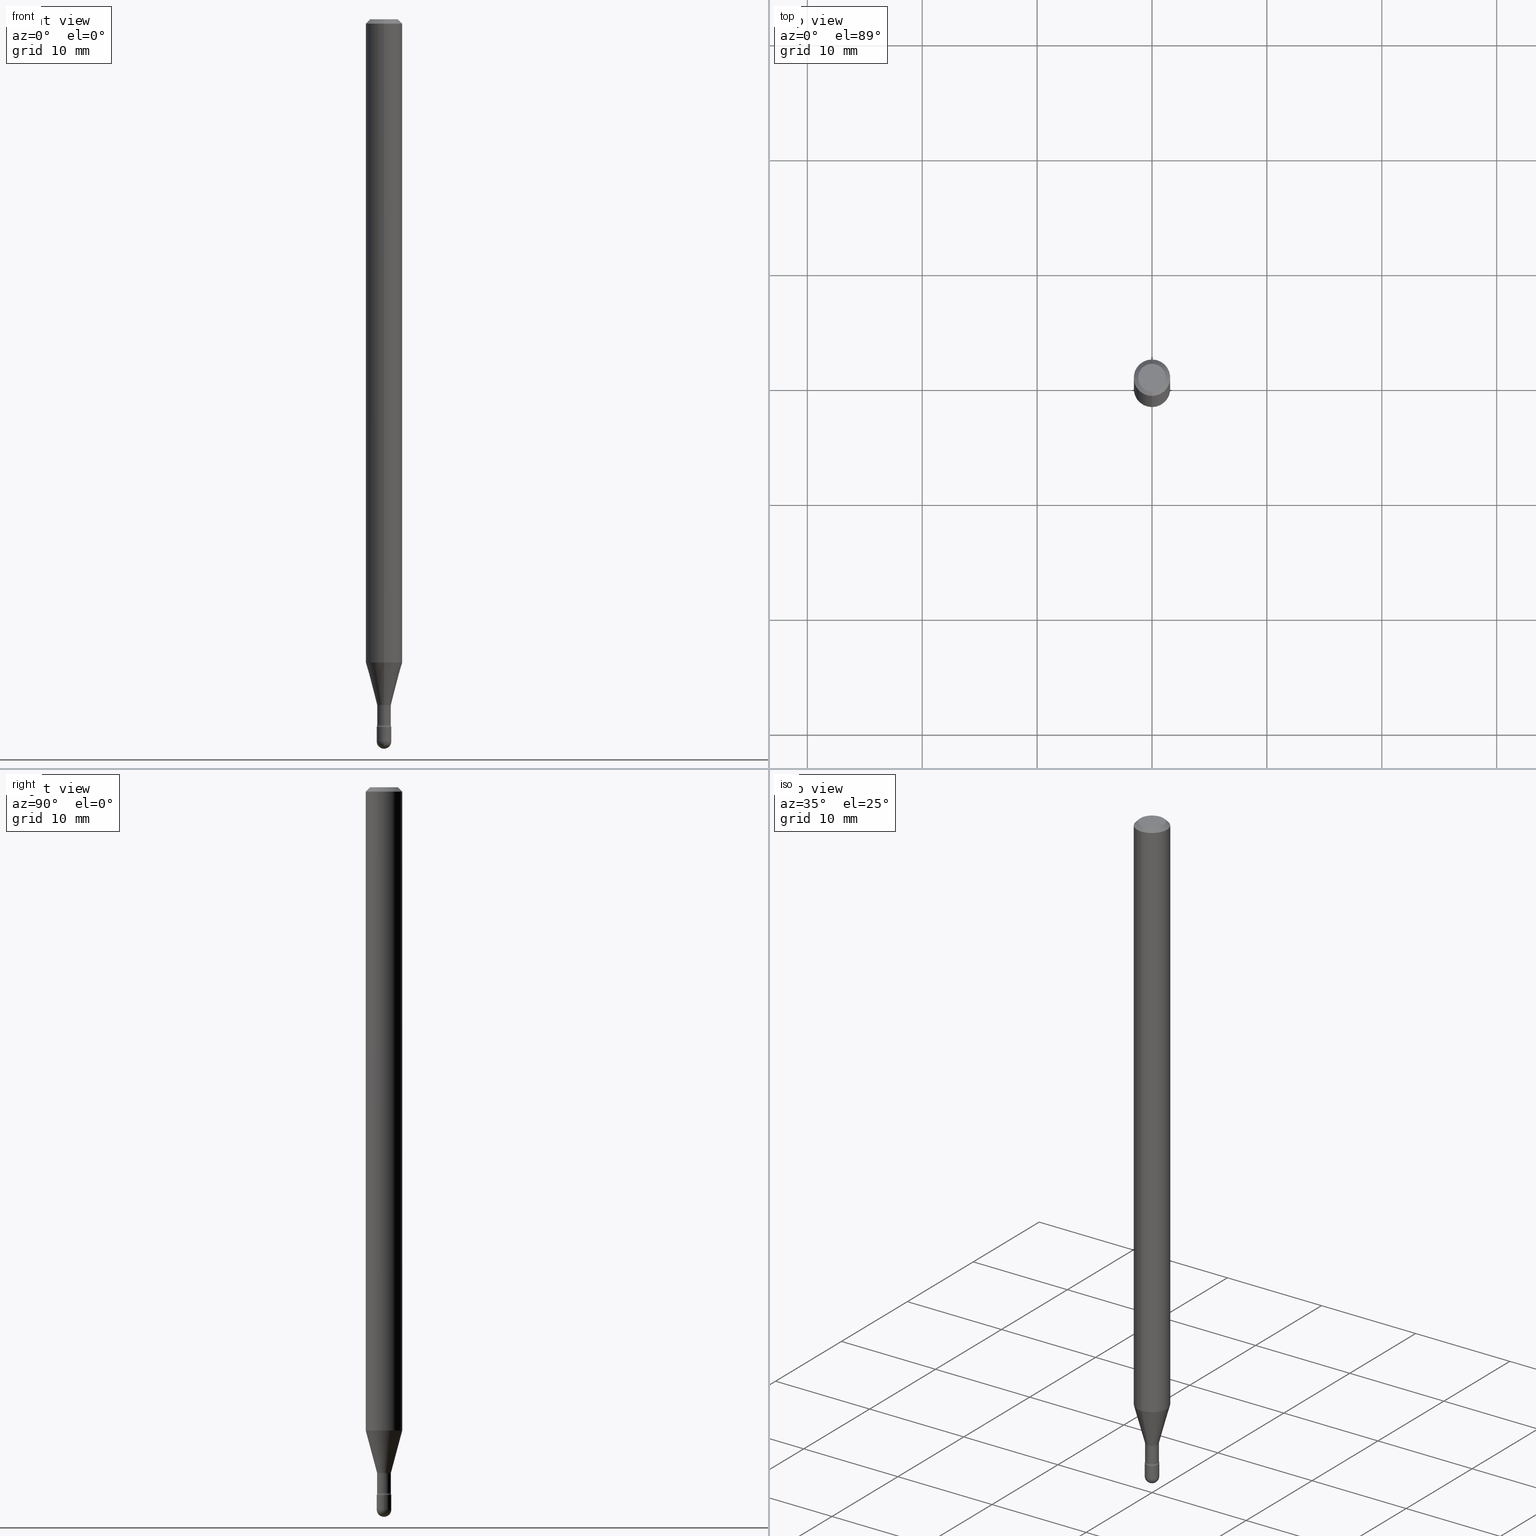
[diagram: canonical four-view strip — front | top / right | iso, engineering-drawing reading convention]
A machine part, canonical four-view strip (front | top / right | iso — engineering-drawing reading convention). The complete STEP part file that produces these views, byte-faithful:
ISO-10303-21;
HEADER;
FILE_DESCRIPTION (( 'STEP AP203' ),
    '1' );
FILE_NAME ('09480.STEP',
    '2024-04-09T23:40:14',
    ( '' ),
    ( '' ),
    'SwSTEP 2.0',
    'SolidWorks 2023',
    '' );
FILE_SCHEMA (( 'CONFIG_CONTROL_DESIGN' ));
ENDSEC;

DATA;
#1 = DIRECTION ( 'NONE',  ( -2.445458152833989696E-29, 3.491496595048338889E-15, 1.000000000000000000 ) ) ;
#2 = VERTEX_POINT ( 'NONE', #441 ) ;
#3 = DIRECTION ( 'NONE',  ( -2.445458152833989696E-29, 3.491496595048338889E-15, 1.000000000000000000 ) ) ;
#4 = EDGE_CURVE ( 'NONE', #323, #189, #249, .T. ) ;
#5 = CARTESIAN_POINT ( 'NONE',  ( -1.676687031750163775E-16, -0.02401111260567218020, -2.348092501787273356 ) ) ;
#6 = ORIENTED_EDGE ( 'NONE', *, *, #499, .T. ) ;
#7 = AXIS2_PLACEMENT_3D ( 'NONE', #209, #30, #128 ) ;
#8 = DIRECTION ( 'NONE',  ( -2.445468806185136597E-29, 3.491481338843145583E-15, 1.000000000000000000 ) ) ;
#9 = DIRECTION ( 'NONE',  ( -2.445458152833989696E-29, 3.491496595048338889E-15, 1.000000000000000000 ) ) ;
#10 = EDGE_LOOP ( 'NONE', ( #470, #363, #6, #267 ) ) ;
#11 = DIRECTION ( 'NONE',  ( -1.000000000000000000, 6.982962677686265922E-15, -4.883557194083112340E-29 ) ) ;
#12 = CARTESIAN_POINT ( 'NONE',  ( 5.930261854998957144E-29, -8.466842246694628363E-15, -2.425000000000000266 ) ) ;
#13 = ADVANCED_FACE ( 'NONE', ( #55 ), #312, .T. ) ;
#14 = CC_DESIGN_DATE_AND_TIME_ASSIGNMENT ( #410, #163, ( #439 ) ) ;
#15 = LINE ( 'NONE', #290, #82 ) ;
#16 = EDGE_LOOP ( 'NONE', ( #241, #280, #304, #162, #51 ) ) ;
#17 = AXIS2_PLACEMENT_3D ( 'NONE', #562, #343, #302 ) ;
#18 = LOCAL_TIME ( 19, 40, 14.00000000000000000, #120 ) ;
#19 = DIRECTION ( 'NONE',  ( -6.982962677686266711E-15, -1.000000000000000000, 3.491496595048338889E-15 ) ) ;
#20 = VERTEX_POINT ( 'NONE', #373 ) ;
#21 = DIRECTION ( 'NONE',  ( -2.445468806185136877E-29, 3.491481338843145188E-15, 1.000000000000000000 ) ) ;
#22 = FACE_OUTER_BOUND ( 'NONE', #539, .T. ) ;
#23 = CARTESIAN_POINT ( 'NONE',  ( -1.169113584055446105E-44, 1.669184350826100908E-30, 4.780733988912460139E-16 ) ) ;
#24 = EDGE_CURVE ( 'NONE', #346, #20, #158, .T. ) ;
#25 = ADVANCED_FACE ( 'NONE', ( #175 ), #461, .F. ) ;
#26 = CALENDAR_DATE ( 2024, 9, 4 ) ;
#27 = CARTESIAN_POINT ( 'NONE',  ( 4.364351673553919652E-16, 0.06249999999999995143, -0.01500000000000030129 ) ) ;
#28 = VERTEX_POINT ( 'NONE', #415 ) ;
#29 = DATE_AND_TIME ( #26, #80 ) ;
#30 = DIRECTION ( 'NONE',  ( -2.445468806185136597E-29, 3.491481338843145583E-15, 1.000000000000000000 ) ) ;
#31 = VECTOR ( 'NONE', #354, 39.37007874015748143 ) ;
#32 = DIRECTION ( 'NONE',  ( -2.445458152833989696E-29, 3.491496595048338889E-15, 1.000000000000000000 ) ) ;
#33 = CIRCLE ( 'NONE', #317, 0.02350000000000008332 ) ;
#34 = DIRECTION ( 'NONE',  ( -2.445468806185136597E-29, 3.491481338843145583E-15, 1.000000000000000000 ) ) ;
#35 = CARTESIAN_POINT ( 'NONE',  ( 0.000000000000000000, 0.000000000000000000, 0.000000000000000000 ) ) ;
#36 = CARTESIAN_POINT ( 'NONE',  ( -0.02500000000000000486, 1.776356839400250810E-16, -1.229733772563726656E-30 ) ) ;
#37 = EDGE_CURVE ( 'NONE', #143, #199, #502, .T. ) ;
#38 = DIRECTION ( 'NONE',  ( 1.000000000000000000, -6.982962677686253300E-15, 0.000000000000000000 ) ) ;
#39 = CARTESIAN_POINT ( 'NONE',  ( -1.169113584055446105E-44, 1.669184350826100908E-30, 4.780733988912460139E-16 ) ) ;
#40 = CIRCLE ( 'NONE', #90, 0.02500000000000000139 ) ;
#41 = DIRECTION ( 'NONE',  ( 7.105427357601001859E-15, 1.000000000000000000, 0.000000000000000000 ) ) ;
#42 = EDGE_CURVE ( 'NONE', #532, #521, #501, .T. ) ;
#43 = VERTEX_POINT ( 'NONE', #545 ) ;
#44 = CIRCLE ( 'NONE', #274, 0.06250000000000000000 ) ;
#45 = DIRECTION ( 'NONE',  ( -6.982962677686265133E-15, -1.000000000000000000, 0.000000000000000000 ) ) ;
#46 = AXIS2_PLACEMENT_3D ( 'NONE', #552, #413, #551 ) ;
#47 = AXIS2_PLACEMENT_3D ( 'NONE', #151, #520, #517 ) ;
#48 = DIRECTION ( 'NONE',  ( -6.982962677686265922E-15, -1.000000000000000000, 0.000000000000000000 ) ) ;
#49 = ORIENTED_EDGE ( 'NONE', *, *, #555, .T. ) ;
#50 = DIRECTION ( 'NONE',  ( -1.807323732225330928E-15, -0.2588190451025182970, 0.9659258262890689783 ) ) ;
#51 = ORIENTED_EDGE ( 'NONE', *, *, #83, .T. ) ;
#52 = PRODUCT ( '09480', '09480', '', ( #222 ) ) ;
#53 = LINE ( 'NONE', #5, #159 ) ;
#54 = ORIENTED_EDGE ( 'NONE', *, *, #279, .T. ) ;
#55 = FACE_OUTER_BOUND ( 'NONE', #183, .T. ) ;
#56 = LOCAL_TIME ( 19, 40, 14.00000000000000000, #273 ) ;
#57 = AXIS2_PLACEMENT_3D ( 'NONE', #350, #9, #269 ) ;
#58 = CARTESIAN_POINT ( 'NONE',  ( 3.668187229251004706E-31, -5.237244892572537719E-17, -0.01500000000000008271 ) ) ;
#59 = ORIENTED_EDGE ( 'NONE', *, *, #287, .F. ) ;
#60 = ADVANCED_FACE ( 'NONE', ( #70 ), #289, .T. ) ;
#61 = ADVANCED_FACE ( 'NONE', ( #212 ), #247, .T. ) ;
#62 = PERSON_AND_ORGANIZATION ( #300, #512 ) ;
#63 = EDGE_LOOP ( 'NONE', ( #351, #203, #238, #307 ) ) ;
#64 = CARTESIAN_POINT ( 'NONE',  ( 5.914272527905344176E-29, -8.444013725215716224E-15, -2.418461651584689509 ) ) ;
#65 = LINE ( 'NONE', #99, #402 ) ;
#66 = VERTEX_POINT ( 'NONE', #215 ) ;
#67 = PERSON_AND_ORGANIZATION ( #300, #512 ) ;
#68 = DIRECTION ( 'NONE',  ( -2.445458152833989696E-29, 3.491496595048338889E-15, 1.000000000000000000 ) ) ;
#69 = ORIENTED_EDGE ( 'NONE', *, *, #367, .F. ) ;
#70 = FACE_OUTER_BOUND ( 'NONE', #525, .T. ) ;
#71 = DIRECTION ( 'NONE',  ( -6.982962677686265133E-15, -1.000000000000000000, 0.000000000000000000 ) ) ;
#72 = ORIENTED_EDGE ( 'NONE', *, *, #435, .F. ) ;
#73 = CARTESIAN_POINT ( 'NONE',  ( -1.169113584055446105E-44, 1.669184350826100908E-30, 4.780733988912460139E-16 ) ) ;
#74 = CARTESIAN_POINT ( 'NONE',  ( 5.914246763184134866E-29, -8.444050621762925352E-15, -2.418461651584689509 ) ) ;
#75 = APPROVAL_ROLE ( '' ) ;
#76 = CARTESIAN_POINT ( 'NONE',  ( 6.052535295308213750E-29, -8.641416313636786609E-15, -2.475000000000000089 ) ) ;
#77 = EDGE_CURVE ( 'NONE', #323, #357, #138, .T. ) ;
#78 = DIRECTION ( 'NONE',  ( -2.445458152833989696E-29, 3.491496595048338889E-15, 1.000000000000000000 ) ) ;
#79 = AXIS2_PLACEMENT_3D ( 'NONE', #467, #89, #41 ) ;
#80 = LOCAL_TIME ( 19, 40, 14.00000000000000000, #114 ) ;
#81 = AXIS2_PLACEMENT_3D ( 'NONE', #463, #78, #248 ) ;
#82 = VECTOR ( 'NONE', #320, 39.37007874015748143 ) ;
#83 = EDGE_CURVE ( 'NONE', #20, #28, #537, .T. ) ;
#84 = DIRECTION ( 'NONE',  ( 1.000000000000000000, -6.982962677686253300E-15, 0.000000000000000000 ) ) ;
#85 = DIRECTION ( 'NONE',  ( -2.445458152833989696E-29, 3.491496595048338889E-15, 1.000000000000000000 ) ) ;
#86 = DIRECTION ( 'NONE',  ( 1.000000000000000000, -6.982962677686254878E-15, 0.000000000000000000 ) ) ;
#87 = MANIFOLD_SOLID_BREP ( 'Body-Move/Copy2[1]', #124 ) ;
#88 = EDGE_CURVE ( 'NONE', #66, #522, #458, .T. ) ;
#89 = DIRECTION ( 'NONE',  ( 1.000000000000000000, -7.105427357601001070E-15, 4.926315695376710518E-29 ) ) ;
#90 = AXIS2_PLACEMENT_3D ( 'NONE', #375, #508, #86 ) ;
#91 = MANIFOLD_SOLID_BREP ( 'Body-Move/Copy2[2]', #232 ) ;
#92 = DIRECTION ( 'NONE',  ( -6.982962677686265133E-15, -1.000000000000000000, 0.000000000000000000 ) ) ;
#93 = EDGE_LOOP ( 'NONE', ( #265, #95, #378, #322 ) ) ;
#94 = DIRECTION ( 'NONE',  ( -2.445458152833989696E-29, 3.491496595048338889E-15, 1.000000000000000000 ) ) ;
#95 = ORIENTED_EDGE ( 'NONE', *, *, #147, .T. ) ;
#96 = CIRCLE ( 'NONE', #57, 0.06250000000000000000 ) ;
#97 = ADVANCED_FACE ( 'NONE', ( #168 ), #330, .T. ) ;
#98 = CYLINDRICAL_SURFACE ( 'NONE', #135, 0.06250000000000000000 ) ;
#99 = CARTESIAN_POINT ( 'NONE',  ( 4.440892098500625669E-16, 0.06250000000000000000, 2.598548617007248827E-16 ) ) ;
#100 = ORIENTED_EDGE ( 'NONE', *, *, #121, .F. ) ;
#101 = CARTESIAN_POINT ( 'NONE',  ( 0.02500000000000000486, -1.745740669421567171E-16, 1.219044193948984299E-30 ) ) ;
#102 = DIRECTION ( 'NONE',  ( -6.982962677686265922E-15, -1.000000000000000000, 4.370956789862821150E-15 ) ) ;
#103 = CARTESIAN_POINT ( 'NONE',  ( 0.02500000000000000139, -8.641416313636785031E-15, -2.425000000000000266 ) ) ;
#104 = EDGE_LOOP ( 'NONE', ( #72, #423 ) ) ;
#105 = DIRECTION ( 'NONE',  ( -2.445458152833989696E-29, 3.491496595048338889E-15, 1.000000000000000000 ) ) ;
#106 = ADVANCED_FACE ( 'NONE', ( #251 ), #513, .F. ) ;
#107 = ORIENTED_EDGE ( 'NONE', *, *, #37, .F. ) ;
#108 = AXIS2_PLACEMENT_3D ( 'NONE', #230, #527, #303 ) ;
#109 = CALENDAR_DATE ( 2024, 9, 4 ) ;
#110 = DIRECTION ( 'NONE',  ( 1.000000000000000000, -7.105427357601001070E-15, 4.926315695376710518E-29 ) ) ;
#111 = AXIS2_PLACEMENT_3D ( 'NONE', #483, #105, #270 ) ;
#112 = FACE_OUTER_BOUND ( 'NONE', #301, .T. ) ;
#113 = EDGE_LOOP ( 'NONE', ( #154, #352, #193, #311 ) ) ;
#114 = COORDINATED_UNIVERSAL_TIME_OFFSET ( 5, 0, .BEHIND. ) ;
#115 = CARTESIAN_POINT ( 'NONE',  ( -3.773273898774340269E-16, -0.04749999999999999362, 8.309978086299737473E-17 ) ) ;
#116 = ORIENTED_EDGE ( 'NONE', *, *, #161, .T. ) ;
#117 = EDGE_CURVE ( 'NONE', #28, #143, #469, .T. ) ;
#118 = DATE_TIME_ROLE ( 'classification_date' ) ;
#119 = EDGE_LOOP ( 'NONE', ( #392, #480, #475, #456 ) ) ;
#120 = COORDINATED_UNIVERSAL_TIME_OFFSET ( 5, 0, .BEHIND. ) ;
#121 = EDGE_CURVE ( 'NONE', #226, #566, #420, .T. ) ;
#122 = ORIENTED_EDGE ( 'NONE', *, *, #129, .T. ) ;
#123 = DIRECTION ( 'NONE',  ( -2.445458152833989696E-29, 3.491496595048338889E-15, 1.000000000000000000 ) ) ;
#124 = CLOSED_SHELL ( 'NONE', ( #61, #60, #13, #150, #385 ) ) ;
#125 = SECURITY_CLASSIFICATION_LEVEL ( 'unclassified' ) ;
#126 = DIRECTION ( 'NONE',  ( -2.445458152833989696E-29, 3.491496595048338889E-15, 1.000000000000000000 ) ) ;
#127 = DIRECTION ( 'NONE',  ( -6.982962677686266711E-15, -1.000000000000000000, 3.491496595048338889E-15 ) ) ;
#128 = DIRECTION ( 'NONE',  ( 1.000000000000000000, -6.982962677686253300E-15, 0.000000000000000000 ) ) ;
#129 = EDGE_CURVE ( 'NONE', #199, #234, #40, .T. ) ;
#130 = DIRECTION ( 'NONE',  ( 6.982962677686266711E-15, 1.000000000000000000, 0.000000000000000000 ) ) ;
#131 = AXIS2_PLACEMENT_3D ( 'NONE', #422, #219, #38 ) ;
#132 = CC_DESIGN_APPROVAL ( #315, ( #439 ) ) ;
#133 = AXIS2_PLACEMENT_3D ( 'NONE', #331, #136, #365 ) ;
#134 = CARTESIAN_POINT ( 'NONE',  ( 5.390890270267638833E-29, -7.696829733563806270E-15, -2.204450018504814590 ) ) ;
#135 = AXIS2_PLACEMENT_3D ( 'NONE', #482, #3, #192 ) ;
#136 = DIRECTION ( 'NONE',  ( -2.445458152833989416E-29, 3.491496595048338889E-15, 1.000000000000000000 ) ) ;
#137 = CARTESIAN_POINT ( 'NONE',  ( -0.02500000000000000486, -8.376493596225682282E-15, -2.475000000000000089 ) ) ;
#138 = CIRCLE ( 'NONE', #523, 0.02350000000000008332 ) ;
#139 = AXIS2_PLACEMENT_3D ( 'NONE', #260, #11, #253 ) ;
#140 = EDGE_CURVE ( 'NONE', #558, #43, #374, .T. ) ;
#141 = EDGE_LOOP ( 'NONE', ( #436, #389 ) ) ;
#142 = PLANE ( 'NONE',  #334 ) ;
#143 = VERTEX_POINT ( 'NONE', #137 ) ;
#144 = DIRECTION ( 'NONE',  ( -1.000000000000000000, 6.982962677686266711E-15, -4.883557194083112901E-29 ) ) ;
#145 = ORIENTED_EDGE ( 'NONE', *, *, #381, .T. ) ;
#146 = PRODUCT_DEFINITION_FORMATION_WITH_SPECIFIED_SOURCE ( 'ANY', '', #52, .NOT_KNOWN. ) ;
#147 = EDGE_CURVE ( 'NONE', #532, #403, #468, .T. ) ;
#148 = FACE_OUTER_BOUND ( 'NONE', #93, .T. ) ;
#149 = ORIENTED_EDGE ( 'NONE', *, *, #180, .F. ) ;
#150 = ADVANCED_FACE ( 'NONE', ( #377 ), #257, .T. ) ;
#151 = CARTESIAN_POINT ( 'NONE',  ( 3.668187229251004706E-31, -5.237244892572537719E-17, -0.01500000000000008271 ) ) ;
#152 = DIRECTION ( 'NONE',  ( 7.105427357600997914E-15, 1.000000000000000000, 0.000000000000000000 ) ) ;
#153 = DIRECTION ( 'NONE',  ( -2.445458152833989696E-29, 3.491496595048338889E-15, 1.000000000000000000 ) ) ;
#154 = ORIENTED_EDGE ( 'NONE', *, *, #256, .F. ) ;
#155 = CIRCLE ( 'NONE', #444, 0.02499999999999993894 ) ;
#156 = APPROVAL_DATE_TIME ( #167, #315 ) ;
#157 = SECURITY_CLASSIFICATION ( '', '', #125 ) ;
#158 = CIRCLE ( 'NONE', #46, 0.02500000000000000486 ) ;
#159 = VECTOR ( 'NONE', #50, 39.37007874015748143 ) ;
#160 = CARTESIAN_POINT ( 'NONE',  ( 4.440892098501169490E-16, 0.06249999999999995837, -0.01500000000000030129 ) ) ;
#161 = EDGE_CURVE ( 'NONE', #403, #566, #341, .T. ) ;
#162 = ORIENTED_EDGE ( 'NONE', *, *, #381, .F. ) ;
#163 = DATE_TIME_ROLE ( 'creation_date' ) ;
#164 =( CONVERSION_BASED_UNIT ( 'INCH', #542 ) LENGTH_UNIT ( ) NAMED_UNIT ( #216 ) );
#165 = ORIENTED_EDGE ( 'NONE', *, *, #228, .F. ) ;
#166 = EDGE_CURVE ( 'NONE', #558, #66, #305, .T. ) ;
#167 = DATE_AND_TIME ( #109, #505 ) ;
#168 = FACE_OUTER_BOUND ( 'NONE', #113, .T. ) ;
#169 = CARTESIAN_POINT ( 'NONE',  ( 6.114740973324316709E-29, -8.727172538608929491E-15, -2.500000000000000000 ) ) ;
#170 = CARTESIAN_POINT ( 'NONE',  ( 0.000000000000000000, 0.000000000000000000, 0.000000000000000000 ) ) ;
#171 = AXIS2_PLACEMENT_3D ( 'NONE', #220, #94, #45 ) ;
#172 = APPROVAL_DATE_TIME ( #29, #239 ) ;
#173 = DIRECTION ( 'NONE',  ( 1.000000000000000000, -6.982962677686265922E-15, 4.876176775795935793E-29 ) ) ;
#174 = ADVANCED_FACE ( 'NONE', ( #295 ), #464, .F. ) ;
#175 = FACE_OUTER_BOUND ( 'NONE', #104, .T. ) ;
#176 = DIRECTION ( 'NONE',  ( 1.000000000000000000, -6.982962677686267499E-15, 4.876176775795936353E-29 ) ) ;
#177 = DIRECTION ( 'NONE',  ( 1.839019923739601104E-15, 0.2588190451025250693, 0.9659258262890670910 ) ) ;
#178 = CONICAL_SURFACE ( 'NONE', #554, 0.02401111260566398189, 0.2617993877991502960 ) ;
#179 = CARTESIAN_POINT ( 'NONE',  ( 1.776356839400842949E-16, 0.02499999999999152900, -2.425000000000000266 ) ) ;
#180 = EDGE_CURVE ( 'NONE', #143, #346, #432, .T. ) ;
#181 = AXIS2_PLACEMENT_3D ( 'NONE', #35, #372, #176 ) ;
#182 = DIRECTION ( 'NONE',  ( -6.982962677686265133E-15, -1.000000000000000000, 0.000000000000000000 ) ) ;
#183 = EDGE_LOOP ( 'NONE', ( #54, #122 ) ) ;
#184 = PERSON_AND_ORGANIZATION ( #300, #512 ) ;
#185 = DIRECTION ( 'NONE',  ( 6.982962677686265922E-15, 1.000000000000000000, -3.483106191921935554E-15 ) ) ;
#186 = ORIENTED_EDGE ( 'NONE', *, *, #367, .T. ) ;
#187 = DIRECTION ( 'NONE',  ( -2.445458152833989696E-29, 3.491496595048338889E-15, 1.000000000000000000 ) ) ;
#188 = CARTESIAN_POINT ( 'NONE',  ( 5.930261854998957144E-29, -8.466842246694628363E-15, -2.425000000000000266 ) ) ;
#189 = VERTEX_POINT ( 'NONE', #179 ) ;
#190 = CC_DESIGN_APPROVAL ( #239, ( #146 ) ) ;
#191 = ADVANCED_FACE ( 'NONE', ( #337 ), #507, .T. ) ;
#192 = DIRECTION ( 'NONE',  ( -6.982962677686265922E-15, -1.000000000000000000, 3.491496595048337706E-15 ) ) ;
#193 = ORIENTED_EDGE ( 'NONE', *, *, #429, .T. ) ;
#194 = APPLICATION_PROTOCOL_DEFINITION ( 'international standard', 'config_control_design', 1994, #530 ) ;
#195 = ORIENTED_EDGE ( 'NONE', *, *, #499, .F. ) ;
#196 = SHAPE_DEFINITION_REPRESENTATION ( #526, #261 ) ;
#197 = DIRECTION ( 'NONE',  ( -2.438088387897960049E-29, 3.491481338843145188E-15, 1.000000000000000000 ) ) ;
#198 = EDGE_CURVE ( 'NONE', #532, #226, #294, .T. ) ;
#199 = VERTEX_POINT ( 'NONE', #376 ) ;
#200 = CIRCLE ( 'NONE', #242, 0.02500000000000000139 ) ;
#201 = DATE_AND_TIME ( #546, #18 ) ;
#202 = CARTESIAN_POINT ( 'NONE',  ( 1.669775429036238399E-16, 0.02350000000000004516, 3.960232289076099069E-16 ) ) ;
#203 = ORIENTED_EDGE ( 'NONE', *, *, #509, .T. ) ;
#204 = DIRECTION ( 'NONE',  ( 4.937700262164548042E-15, 0.7071067811865451302, -0.7071067811865499042 ) ) ;
#205 = CARTESIAN_POINT ( 'NONE',  ( -1.640996229255697637E-16, -0.02350000000000821571, -2.351974787463811278 ) ) ;
#206 = FACE_OUTER_BOUND ( 'NONE', #361, .T. ) ;
#207 = ADVANCED_FACE ( 'NONE', ( #557 ), #142, .F. ) ;
#208 = APPROVAL_STATUS ( 'not_yet_approved' ) ;
#209 = CARTESIAN_POINT ( 'NONE',  ( 6.052535295308213750E-29, -8.641416313636786609E-15, -2.475000000000000089 ) ) ;
#210 =( NAMED_UNIT ( * ) SI_UNIT ( $, .STERADIAN. ) SOLID_ANGLE_UNIT ( ) );
#211 = DATE_AND_TIME ( #281, #56 ) ;
#212 = FACE_OUTER_BOUND ( 'NONE', #16, .T. ) ;
#213 = AXIS2_PLACEMENT_3D ( 'NONE', #313, #486, #258 ) ;
#214 = CIRCLE ( 'NONE', #490, 0.02499999999999993894 ) ;
#215 = CARTESIAN_POINT ( 'NONE',  ( 3.840629472727447874E-16, 0.04749999999999999362, -2.485923956665947867E-16 ) ) ;
#216 = DIMENSIONAL_EXPONENTS ( 1.000000000000000000, 0.000000000000000000, 0.000000000000000000, 0.000000000000000000, 0.000000000000000000, 0.000000000000000000, 0.000000000000000000 ) ;
#217 = APPROVAL_PERSON_ORGANIZATION ( #460, #315, #491 ) ;
#218 = DIRECTION ( 'NONE',  ( -2.445458152833989696E-29, 3.491496595048338889E-15, 1.000000000000000000 ) ) ;
#219 = DIRECTION ( 'NONE',  ( -2.445468806185136597E-29, 3.491481338843145583E-15, 1.000000000000000000 ) ) ;
#220 = CARTESIAN_POINT ( 'NONE',  ( 5.742161952104046724E-29, -8.198356974848799736E-15, -2.348092501787273356 ) ) ;
#221 = ORIENTED_EDGE ( 'NONE', *, *, #435, .T. ) ;
#222 = MECHANICAL_CONTEXT ( 'NONE', #559, 'mechanical' ) ;
#223 = CC_DESIGN_PERSON_AND_ORGANIZATION_ASSIGNMENT ( #544, #407, ( #157 ) ) ;
#224 = AXIS2_PLACEMENT_3D ( 'NONE', #23, #418, #339 ) ;
#225 = DIRECTION ( 'NONE',  ( -2.445458152833989696E-29, 3.491496595048338889E-15, 1.000000000000000000 ) ) ;
#226 = VERTEX_POINT ( 'NONE', #277 ) ;
#227 = EDGE_LOOP ( 'NONE', ( #493, #434, #116, #450 ) ) ;
#228 = EDGE_CURVE ( 'NONE', #403, #2, #53, .T. ) ;
#229 = CC_DESIGN_PERSON_AND_ORGANIZATION_ASSIGNMENT ( #67, #541, ( #146 ) ) ;
#230 = CARTESIAN_POINT ( 'NONE',  ( 5.742161952104046724E-29, -8.198356974848799736E-15, -2.348092501787273356 ) ) ;
#231 = EDGE_LOOP ( 'NONE', ( #399, #484, #195, #358 ) ) ;
#232 = CLOSED_SHELL ( 'NONE', ( #338, #191, #106, #347, #424, #324, #286, #97, #292, #207, #25, #471, #356, #174 ) ) ;
#233 = DIRECTION ( 'NONE',  ( 2.445458152833989696E-29, -3.491496595048338889E-15, -1.000000000000000000 ) ) ;
#234 = VERTEX_POINT ( 'NONE', #103 ) ;
#235 = DIRECTION ( 'NONE',  ( 6.982962677686266711E-15, 1.000000000000000000, 0.000000000000000000 ) ) ;
#236 = APPROVAL_STATUS ( 'not_yet_approved' ) ;
#237 = LINE ( 'NONE', #202, #383 ) ;
#238 = ORIENTED_EDGE ( 'NONE', *, *, #246, .F. ) ;
#239 = APPROVAL ( #236, 'UNSPECIFIED' ) ;
#240 = CARTESIAN_POINT ( 'NONE',  ( 6.052535295308213750E-29, -8.641416313636786609E-15, -2.475000000000000089 ) ) ;
#241 = ORIENTED_EDGE ( 'NONE', *, *, #117, .T. ) ;
#242 = AXIS2_PLACEMENT_3D ( 'NONE', #188, #8, #266 ) ;
#243 = CARTESIAN_POINT ( 'NONE',  ( 5.914246763184134866E-29, -8.444050621762925352E-15, -2.418461651584689509 ) ) ;
#244 = AXIS2_PLACEMENT_3D ( 'NONE', #73, #126, #496 ) ;
#245 = CARTESIAN_POINT ( 'NONE',  ( 2.023475389688437827E-45, -2.889157441320743352E-31, -8.274630740179869982E-17 ) ) ;
#246 = EDGE_CURVE ( 'NONE', #566, #226, #340, .T. ) ;
#247 = CYLINDRICAL_SURFACE ( 'NONE', #336, 0.02500000000000000486 ) ;
#248 = DIRECTION ( 'NONE',  ( -6.982962677686265922E-15, -1.000000000000000000, 0.000000000000000000 ) ) ;
#249 = CIRCLE ( 'NONE', #431, 0.01499999999999999424 ) ;
#250 = CIRCLE ( 'NONE', #561, 0.02500000000000000139 ) ;
#251 = FACE_OUTER_BOUND ( 'NONE', #396, .T. ) ;
#252 = ORIENTED_EDGE ( 'NONE', *, *, #180, .T. ) ;
#253 = DIRECTION ( 'NONE',  ( -6.982962677686267499E-15, -1.000000000000000000, 0.000000000000000000 ) ) ;
#254 = VECTOR ( 'NONE', #21, 39.37007874015748143 ) ;
#255 = DIRECTION ( 'NONE',  ( -4.851104656540964275E-15, -0.7071067811865500152, -0.7071067811865450192 ) ) ;
#256 = EDGE_CURVE ( 'NONE', #521, #522, #65, .T. ) ;
#257 = SPHERICAL_SURFACE ( 'NONE', #442, 0.02499999999999993894 ) ;
#258 = DIRECTION ( 'NONE',  ( 1.000000000000000000, 0.000000000000000000, 0.000000000000000000 ) ) ;
#259 = ORIENTED_EDGE ( 'NONE', *, *, #535, .F. ) ;
#260 = CARTESIAN_POINT ( 'NONE',  ( -2.688440630908636756E-16, -0.03850000000000820821, -2.351974787463811278 ) ) ;
#261 = ADVANCED_BREP_SHAPE_REPRESENTATION ( '09480', ( #87, #91, #213 ), #335 ) ;
#262 = AXIS2_PLACEMENT_3D ( 'NONE', #58, #233, #488 ) ;
#263 = LOCAL_TIME ( 19, 40, 14.00000000000000000, #457 ) ;
#264 = CARTESIAN_POINT ( 'NONE',  ( -1.776356839399642894E-16, -0.02500000000000861256, -2.475000000000000089 ) ) ;
#265 = ORIENTED_EDGE ( 'NONE', *, *, #42, .F. ) ;
#266 = DIRECTION ( 'NONE',  ( 1.000000000000000000, -6.982962677686254878E-15, 0.000000000000000000 ) ) ;
#267 = ORIENTED_EDGE ( 'NONE', *, *, #88, .F. ) ;
#268 = DIRECTION ( 'NONE',  ( -2.445458152833989696E-29, 3.491496595048338889E-15, 1.000000000000000000 ) ) ;
#269 = DIRECTION ( 'NONE',  ( -6.982962677686265922E-15, -1.000000000000000000, 4.370956789862821150E-15 ) ) ;
#270 = DIRECTION ( 'NONE',  ( -6.982962677686265922E-15, -1.000000000000000000, 3.491496595048338889E-15 ) ) ;
#271 = AXIS2_PLACEMENT_3D ( 'NONE', #134, #85, #102 ) ;
#272 = EDGE_LOOP ( 'NONE', ( #49, #516, #59, #165 ) ) ;
#273 = COORDINATED_UNIVERSAL_TIME_OFFSET ( 5, 0, .BEHIND. ) ;
#274 = AXIS2_PLACEMENT_3D ( 'NONE', #398, #401, #449 ) ;
#275 = CARTESIAN_POINT ( 'NONE',  ( 2.735589532676981763E-16, 0.03849999999999163119, -2.418461651584689509 ) ) ;
#276 = CARTESIAN_POINT ( 'NONE',  ( 6.052535295308213750E-29, -8.641416313636786609E-15, -2.475000000000000089 ) ) ;
#277 = CARTESIAN_POINT ( 'NONE',  ( 1.669775429036828319E-16, 0.02349999999999178787, -2.351974787463811278 ) ) ;
#278 = ORIENTED_EDGE ( 'NONE', *, *, #77, .T. ) ;
#279 = EDGE_CURVE ( 'NONE', #234, #199, #200, .T. ) ;
#280 = ORIENTED_EDGE ( 'NONE', *, *, #37, .T. ) ;
#281 = CALENDAR_DATE ( 2024, 9, 4 ) ;
#282 = APPLICATION_PROTOCOL_DEFINITION ( 'international standard', 'config_control_design', 1994, #559 ) ;
#283 = ORIENTED_EDGE ( 'NONE', *, *, #509, .F. ) ;
#284 = DIRECTION ( 'NONE',  ( -1.000000000000000000, 6.982962677686266711E-15, -4.883557194083112901E-29 ) ) ;
#285 = AXIS2_PLACEMENT_3D ( 'NONE', #498, #328, #369 ) ;
#286 = ADVANCED_FACE ( 'NONE', ( #148 ), #178, .T. ) ;
#287 = EDGE_CURVE ( 'NONE', #2, #521, #96, .T. ) ;
#288 = APPROVAL_ROLE ( '' ) ;
#289 = SPHERICAL_SURFACE ( 'NONE', #370, 0.02499999999999993894 ) ;
#290 = CARTESIAN_POINT ( 'NONE',  ( -1.640996229256275477E-16, -0.02350000000000004516, 5.601235688748821703E-16 ) ) ;
#291 = CYLINDRICAL_SURFACE ( 'NONE', #181, 0.02500000000000000486 ) ;
#292 = ADVANCED_FACE ( 'NONE', ( #355 ), #380, .T. ) ;
#293 = AXIS2_PLACEMENT_3D ( 'NONE', #64, #455, #127 ) ;
#294 = CIRCLE ( 'NONE', #79, 0.01500000000000001853 ) ;
#295 = FACE_OUTER_BOUND ( 'NONE', #227, .T. ) ;
#296 = CARTESIAN_POINT ( 'NONE',  ( 1.706092163947804984E-16, 0.02401111260565578012, -2.348092501787273356 ) ) ;
#297 = DIRECTION ( 'NONE',  ( -6.982962677686265133E-15, -1.000000000000000000, 3.491496595048337311E-15 ) ) ;
#298 = CIRCLE ( 'NONE', #382, 0.02401111260566398189 ) ;
#299 = AXIS2_PLACEMENT_3D ( 'NONE', #388, #187, #92 ) ;
#300 = PERSON ( 'UNSPECIFIED', 'UNSPECIFIED', 'UNSPECIFIED', ('UNSPECIFIED'), ('UNSPECIFIED'), ('UNSPECIFIED') ) ;
#301 = EDGE_LOOP ( 'NONE', ( #283, #278, #495, #100 ) ) ;
#302 = DIRECTION ( 'NONE',  ( -6.982962677686262766E-15, -1.000000000000000000, 0.000000000000000000 ) ) ;
#303 = DIRECTION ( 'NONE',  ( -6.982962677686265133E-15, -1.000000000000000000, 0.000000000000000000 ) ) ;
#304 = ORIENTED_EDGE ( 'NONE', *, *, #279, .F. ) ;
#305 = CIRCLE ( 'NONE', #465, 0.04749999999999999362 ) ;
#306 = LINE ( 'NONE', #101, #474 ) ;
#307 = ORIENTED_EDGE ( 'NONE', *, *, #503, .F. ) ;
#308 = DIRECTION ( 'NONE',  ( 2.445458152833989696E-29, -3.491496595048338889E-15, -1.000000000000000000 ) ) ;
#309 = ORIENTED_EDGE ( 'NONE', *, *, #4, .F. ) ;
#310 = FACE_OUTER_BOUND ( 'NONE', #440, .T. ) ;
#311 = ORIENTED_EDGE ( 'NONE', *, *, #332, .F. ) ;
#312 = PLANE ( 'NONE',  #487 ) ;
#313 = CARTESIAN_POINT ( 'NONE',  ( 0.000000000000000000, 0.000000000000000000, 0.000000000000000000 ) ) ;
#314 = AXIS2_PLACEMENT_3D ( 'NONE', #39, #218, #297 ) ;
#315 = APPROVAL ( #448, 'UNSPECIFIED' ) ;
#316 = ORIENTED_EDGE ( 'NONE', *, *, #117, .F. ) ;
#317 = AXIS2_PLACEMENT_3D ( 'NONE', #74, #32, #71 ) ;
#318 = VECTOR ( 'NONE', #204, 39.37007874015748143 ) ;
#319 = CIRCLE ( 'NONE', #271, 0.06250000000000000000 ) ;
#320 = DIRECTION ( 'NONE',  ( -2.445458152833989696E-29, 3.491496595048338889E-15, 1.000000000000000000 ) ) ;
#321 = ORIENTED_EDGE ( 'NONE', *, *, #553, .F. ) ;
#322 = ORIENTED_EDGE ( 'NONE', *, *, #414, .F. ) ;
#323 = VERTEX_POINT ( 'NONE', #384 ) ;
#324 = ADVANCED_FACE ( 'NONE', ( #479 ), #360, .T. ) ;
#325 = COORDINATED_UNIVERSAL_TIME_OFFSET ( 5, 0, .BEHIND. ) ;
#326 = DIRECTION ( 'NONE',  ( -6.982962677686265133E-15, -1.000000000000000000, 0.000000000000000000 ) ) ;
#327 = DIRECTION ( 'NONE',  ( 6.982962677686265922E-15, 1.000000000000000000, 0.000000000000000000 ) ) ;
#328 = DIRECTION ( 'NONE',  ( -2.445458152833989696E-29, 3.491496595048338889E-15, 1.000000000000000000 ) ) ;
#329 = UNCERTAINTY_MEASURE_WITH_UNIT (LENGTH_MEASURE( 1.000000000000000082E-05 ), #164, 'distance_accuracy_value', 'NONE');
#330 = CYLINDRICAL_SURFACE ( 'NONE', #244, 0.06250000000000000000 ) ;
#331 = CARTESIAN_POINT ( 'NONE',  ( 1.745740669422159556E-16, 0.02499999999999153247, -2.425000000000000266 ) ) ;
#332 = EDGE_CURVE ( 'NONE', #522, #43, #540, .T. ) ;
#333 = CARTESIAN_POINT ( 'NONE',  ( -1.676687031750163775E-16, -0.02401111260567218020, -2.348092501787273356 ) ) ;
#334 = AXIS2_PLACEMENT_3D ( 'NONE', #438, #391, #345 ) ;
#335 =( GEOMETRIC_REPRESENTATION_CONTEXT ( 3 ) GLOBAL_UNCERTAINTY_ASSIGNED_CONTEXT ( ( #329 ) ) GLOBAL_UNIT_ASSIGNED_CONTEXT ( ( #164, #494, #210 ) ) REPRESENTATION_CONTEXT ( 'NONE', 'WORKASPACE' ) );
#336 = AXIS2_PLACEMENT_3D ( 'NONE', #170, #547, #408 ) ;
#337 = FACE_OUTER_BOUND ( 'NONE', #63, .T. ) ;
#338 = ADVANCED_FACE ( 'NONE', ( #310 ), #371, .F. ) ;
#339 = DIRECTION ( 'NONE',  ( -6.982962677686265133E-15, -1.000000000000000000, 3.491496595048337311E-15 ) ) ;
#340 = CIRCLE ( 'NONE', #533, 0.02350000000000000352 ) ;
#341 = CIRCLE ( 'NONE', #139, 0.01500000000000001853 ) ;
#342 = ORIENTED_EDGE ( 'NONE', *, *, #161, .F. ) ;
#343 = DIRECTION ( 'NONE',  ( -1.000000000000000000, 6.982962677686265922E-15, -4.883557194083112340E-29 ) ) ;
#344 = LINE ( 'NONE', #478, #31 ) ;
#345 = DIRECTION ( 'NONE',  ( 6.982962677686265922E-15, 1.000000000000000000, -3.491496595048338889E-15 ) ) ;
#346 = VERTEX_POINT ( 'NONE', #264 ) ;
#347 = ADVANCED_FACE ( 'NONE', ( #443 ), #412, .T. ) ;
#348 = ORIENTED_EDGE ( 'NONE', *, *, #427, .T. ) ;
#349 = CC_DESIGN_PERSON_AND_ORGANIZATION_ASSIGNMENT ( #497, #364, ( #146 ) ) ;
#350 = CARTESIAN_POINT ( 'NONE',  ( 5.390890270267638833E-29, -7.696829733563806270E-15, -2.204450018504814590 ) ) ;
#351 = ORIENTED_EDGE ( 'NONE', *, *, #535, .T. ) ;
#352 = ORIENTED_EDGE ( 'NONE', *, *, #414, .T. ) ;
#353 = ORIENTED_EDGE ( 'NONE', *, *, #198, .T. ) ;
#354 = DIRECTION ( 'NONE',  ( -2.445458152833989696E-29, 3.491496595048338889E-15, 1.000000000000000000 ) ) ;
#355 = FACE_OUTER_BOUND ( 'NONE', #387, .T. ) ;
#356 = ADVANCED_FACE ( 'NONE', ( #112 ), #446, .T. ) ;
#357 = VERTEX_POINT ( 'NONE', #379 ) ;
#358 = ORIENTED_EDGE ( 'NONE', *, *, #429, .F. ) ;
#359 = CARTESIAN_POINT ( 'NONE',  ( -1.745740669420973060E-16, -0.02500000000000846337, -2.425000000000000266 ) ) ;
#360 = CONICAL_SURFACE ( 'NONE', #108, 0.02401111260566398189, 0.2617993877991502960 ) ;
#361 = EDGE_LOOP ( 'NONE', ( #107, #252, #473, #145, #518 ) ) ;
#362 = DIRECTION ( 'NONE',  ( -6.982962677686265133E-15, -1.000000000000000000, 0.000000000000000000 ) ) ;
#363 = ORIENTED_EDGE ( 'NONE', *, *, #140, .T. ) ;
#364 = PERSON_AND_ORGANIZATION_ROLE ( 'design_supplier' ) ;
#365 = DIRECTION ( 'NONE',  ( -6.982962677686265922E-15, -1.000000000000000000, 3.491496595048338889E-15 ) ) ;
#366 = CARTESIAN_POINT ( 'NONE',  ( 3.073492131224485758E-16, 0.02401111260565577665, -2.348092501787273356 ) ) ;
#367 = EDGE_CURVE ( 'NONE', #357, #447, #511, .T. ) ;
#368 = CALENDAR_DATE ( 2024, 9, 4 ) ;
#369 = DIRECTION ( 'NONE',  ( -6.982962677686266711E-15, -1.000000000000000000, 3.491496595048338889E-15 ) ) ;
#370 = AXIS2_PLACEMENT_3D ( 'NONE', #76, #284, #130 ) ;
#371 = TOROIDAL_SURFACE ( 'NONE', #111, 0.03849999999999999256, 0.01500000000000001853 ) ;
#372 = DIRECTION ( 'NONE',  ( -2.445468806185136597E-29, 3.491481338843145583E-15, 1.000000000000000000 ) ) ;
#373 = CARTESIAN_POINT ( 'NONE',  ( 0.02500000000000000486, -8.728703347107863365E-15, -2.475000000000000089 ) ) ;
#374 = LINE ( 'NONE', #472, #393 ) ;
#375 = CARTESIAN_POINT ( 'NONE',  ( 5.930261854998957144E-29, -8.466842246694628363E-15, -2.425000000000000266 ) ) ;
#376 = CARTESIAN_POINT ( 'NONE',  ( -0.02500000000000000139, -8.376493596225682282E-15, -2.425000000000000266 ) ) ;
#377 = FACE_OUTER_BOUND ( 'NONE', #119, .T. ) ;
#378 = ORIENTED_EDGE ( 'NONE', *, *, #228, .T. ) ;
#379 = CARTESIAN_POINT ( 'NONE',  ( -1.640996229255686790E-16, -0.02350000000000852796, -2.418461651584689509 ) ) ;
#380 = CONICAL_SURFACE ( 'NONE', #564, 0.06250000000000000000, 0.7853981633974483900 ) ;
#381 = EDGE_CURVE ( 'NONE', #20, #234, #306, .T. ) ;
#382 = AXIS2_PLACEMENT_3D ( 'NONE', #548, #68, #362 ) ;
#383 = VECTOR ( 'NONE', #123, 39.37007874015748143 ) ;
#384 = CARTESIAN_POINT ( 'NONE',  ( 1.723066134218837359E-16, 0.02349999999999163869, -2.418461651584689509 ) ) ;
#385 = ADVANCED_FACE ( 'NONE', ( #206 ), #291, .T. ) ;
#386 = ORIENTED_EDGE ( 'NONE', *, *, #332, .T. ) ;
#387 = EDGE_LOOP ( 'NONE', ( #560, #321, #452, #386 ) ) ;
#388 = CARTESIAN_POINT ( 'NONE',  ( 5.930236020622425280E-29, -8.466879242992222950E-15, -2.425000000000000266 ) ) ;
#389 = ORIENTED_EDGE ( 'NONE', *, *, #166, .T. ) ;
#390 = CC_DESIGN_SECURITY_CLASSIFICATION ( #157, ( #146 ) ) ;
#391 = DIRECTION ( 'NONE',  ( 2.445458152833989416E-29, -3.491496595048338889E-15, -1.000000000000000000 ) ) ;
#392 = ORIENTED_EDGE ( 'NONE', *, *, #466, .F. ) ;
#393 = VECTOR ( 'NONE', #255, 39.37007874015748143 ) ;
#394 = FACE_OUTER_BOUND ( 'NONE', #231, .T. ) ;
#395 = DIRECTION ( 'NONE',  ( -2.445458152833989696E-29, 3.491496595048338889E-15, 1.000000000000000000 ) ) ;
#396 = EDGE_LOOP ( 'NONE', ( #528, #426, #348, #69 ) ) ;
#397 = PERSON_AND_ORGANIZATION ( #300, #512 ) ;
#398 = CARTESIAN_POINT ( 'NONE',  ( 3.668187229251004706E-31, -5.237244892572537719E-17, -0.01500000000000008271 ) ) ;
#399 = ORIENTED_EDGE ( 'NONE', *, *, #287, .T. ) ;
#400 = APPROVAL_DATE_TIME ( #211, #538 ) ;
#401 = DIRECTION ( 'NONE',  ( -2.445458152833989696E-29, 3.491496595048338889E-15, 1.000000000000000000 ) ) ;
#402 = VECTOR ( 'NONE', #395, 39.37007874015748143 ) ;
#403 = VERTEX_POINT ( 'NONE', #333 ) ;
#404 = APPROVAL_PERSON_ORGANIZATION ( #397, #538, #75 ) ;
#405 = AXIS2_PLACEMENT_3D ( 'NONE', #406, #34, #84 ) ;
#406 = CARTESIAN_POINT ( 'NONE',  ( 6.052535295308213750E-29, -8.641416313636786609E-15, -2.475000000000000089 ) ) ;
#407 = PERSON_AND_ORGANIZATION_ROLE ( 'classification_officer' ) ;
#408 = DIRECTION ( 'NONE',  ( 1.000000000000000000, -6.982962677686267499E-15, 4.876176775795936353E-29 ) ) ;
#409 = DIRECTION ( 'NONE',  ( -7.105427357601001070E-15, -1.000000000000000000, 0.000000000000000000 ) ) ;
#410 = DATE_AND_TIME ( #368, #263 ) ;
#411 = DIRECTION ( 'NONE',  ( -2.445458152833989696E-29, 3.491496595048338889E-15, 1.000000000000000000 ) ) ;
#412 = CONICAL_SURFACE ( 'NONE', #262, 0.06250000000000000000, 0.7853981633974483900 ) ;
#413 = DIRECTION ( 'NONE',  ( -2.445468806185136597E-29, 3.491481338843145583E-15, 1.000000000000000000 ) ) ;
#414 = EDGE_CURVE ( 'NONE', #521, #2, #319, .T. ) ;
#415 = CARTESIAN_POINT ( 'NONE',  ( 1.745740669422169663E-16, 0.02499999999999133124, -2.475000000000000089 ) ) ;
#416 = DIRECTION ( 'NONE',  ( -2.445458152833989696E-29, 3.491496595048338889E-15, 1.000000000000000000 ) ) ;
#417 = DESIGN_CONTEXT ( 'detailed design', #530, 'design' ) ;
#418 = DIRECTION ( 'NONE',  ( -2.445458152833989696E-29, 3.491496595048338889E-15, 1.000000000000000000 ) ) ;
#419 = ORIENTED_EDGE ( 'NONE', *, *, #147, .F. ) ;
#420 = CIRCLE ( 'NONE', #81, 0.02350000000000000352 ) ;
#421 = DIRECTION ( 'NONE',  ( -6.982962677686266711E-15, -1.000000000000000000, 3.491496595048338889E-15 ) ) ;
#422 = CARTESIAN_POINT ( 'NONE',  ( 6.052535295308213750E-29, -8.641416313636786609E-15, -2.475000000000000089 ) ) ;
#423 = ORIENTED_EDGE ( 'NONE', *, *, #427, .F. ) ;
#424 = ADVANCED_FACE ( 'NONE', ( #394 ), #98, .T. ) ;
#425 = PERSON_AND_ORGANIZATION_ROLE ( 'design_owner' ) ;
#426 = ORIENTED_EDGE ( 'NONE', *, *, #4, .T. ) ;
#427 = EDGE_CURVE ( 'NONE', #189, #447, #549, .T. ) ;
#428 = AXIS2_PLACEMENT_3D ( 'NONE', #504, #416, #510 ) ;
#429 = EDGE_CURVE ( 'NONE', #2, #43, #344, .T. ) ;
#430 = AXIS2_PLACEMENT_3D ( 'NONE', #245, #492, #19 ) ;
#431 = AXIS2_PLACEMENT_3D ( 'NONE', #275, #110, #152 ) ;
#432 = CIRCLE ( 'NONE', #131, 0.02500000000000000486 ) ;
#433 = CARTESIAN_POINT ( 'NONE',  ( 5.930236020622425280E-29, -8.466879242992222950E-15, -2.425000000000000266 ) ) ;
#434 = ORIENTED_EDGE ( 'NONE', *, *, #555, .F. ) ;
#435 = EDGE_CURVE ( 'NONE', #447, #189, #250, .T. ) ;
#436 = ORIENTED_EDGE ( 'NONE', *, *, #553, .T. ) ;
#437 = DIRECTION ( 'NONE',  ( -6.982962677686265133E-15, -1.000000000000000000, 0.000000000000000000 ) ) ;
#438 = CARTESIAN_POINT ( 'NONE',  ( 3.316907271900976096E-16, 0.04749999999999999362, 3.181745747992760099E-17 ) ) ;
#439 = PRODUCT_DEFINITION ( 'UNKNOWN', '', #146, #417 ) ;
#440 = EDGE_LOOP ( 'NONE', ( #419, #353, #529, #342 ) ) ;
#441 = CARTESIAN_POINT ( 'NONE',  ( -4.364351673553378297E-16, -0.06250000000000771605, -2.204450018504814146 ) ) ;
#442 = AXIS2_PLACEMENT_3D ( 'NONE', #519, #144, #235 ) ;
#443 = FACE_OUTER_BOUND ( 'NONE', #10, .T. ) ;
#444 = AXIS2_PLACEMENT_3D ( 'NONE', #240, #462, #327 ) ;
#445 = DIRECTION ( 'NONE',  ( -1.000000000000000000, 7.105427357601001070E-15, -4.926315508542082329E-29 ) ) ;
#446 = CYLINDRICAL_SURFACE ( 'NONE', #224, 0.02350000000000004516 ) ;
#447 = VERTEX_POINT ( 'NONE', #359 ) ;
#448 = APPROVAL_STATUS ( 'not_yet_approved' ) ;
#449 = DIRECTION ( 'NONE',  ( -6.982962677686265922E-15, -1.000000000000000000, 3.483106191921935554E-15 ) ) ;
#450 = ORIENTED_EDGE ( 'NONE', *, *, #246, .T. ) ;
#451 = PERSON_AND_ORGANIZATION_ROLE ( 'creator' ) ;
#452 = ORIENTED_EDGE ( 'NONE', *, *, #88, .T. ) ;
#453 = EDGE_CURVE ( 'NONE', #489, #28, #155, .T. ) ;
#454 = CC_DESIGN_PERSON_AND_ORGANIZATION_ASSIGNMENT ( #62, #451, ( #439 ) ) ;
#455 = DIRECTION ( 'NONE',  ( -2.445458152833989696E-29, 3.491496595048338889E-15, 1.000000000000000000 ) ) ;
#456 = ORIENTED_EDGE ( 'NONE', *, *, #24, .F. ) ;
#457 = COORDINATED_UNIVERSAL_TIME_OFFSET ( 5, 0, .BEHIND. ) ;
#458 = LINE ( 'NONE', #27, #318 ) ;
#459 =( LENGTH_UNIT ( ) NAMED_UNIT ( * ) SI_UNIT ( $, .METRE. ) );
#460 = PERSON_AND_ORGANIZATION ( #300, #512 ) ;
#461 = PLANE ( 'NONE',  #133 ) ;
#462 = DIRECTION ( 'NONE',  ( 1.000000000000000000, -6.982962677686265922E-15, 4.883557194083112340E-29 ) ) ;
#463 = CARTESIAN_POINT ( 'NONE',  ( 5.751655919263367267E-29, -8.211911962069436363E-15, -2.351974787463811278 ) ) ;
#464 = TOROIDAL_SURFACE ( 'NONE', #428, 0.03849999999999999256, 0.01500000000000001853 ) ;
#465 = AXIS2_PLACEMENT_3D ( 'NONE', #556, #225, #421 ) ;
#466 = EDGE_CURVE ( 'NONE', #489, #346, #214, .T. ) ;
#467 = CARTESIAN_POINT ( 'NONE',  ( 2.735589532676960069E-16, 0.03849999999999178385, -2.351974787463811278 ) ) ;
#468 = CIRCLE ( 'NONE', #171, 0.02401111260566398189 ) ;
#469 = CIRCLE ( 'NONE', #7, 0.02500000000000000486 ) ;
#470 = ORIENTED_EDGE ( 'NONE', *, *, #166, .F. ) ;
#471 = ADVANCED_FACE ( 'NONE', ( #22 ), #514, .F. ) ;
#472 = CARTESIAN_POINT ( 'NONE',  ( -4.287811248607203282E-16, -0.06250000000000005551, -0.01499999999999986587 ) ) ;
#473 = ORIENTED_EDGE ( 'NONE', *, *, #24, .T. ) ;
#474 = VECTOR ( 'NONE', #481, 39.37007874015748143 ) ;
#475 = ORIENTED_EDGE ( 'NONE', *, *, #83, .F. ) ;
#476 = ORIENTED_EDGE ( 'NONE', *, *, #466, .T. ) ;
#477 = PRODUCT_RELATED_PRODUCT_CATEGORY ( 'detail', '', ( #52 ) ) ;
#478 = CARTESIAN_POINT ( 'NONE',  ( -4.364351673553916201E-16, -0.06250000000000000000, 6.962919360817671945E-16 ) ) ;
#479 = FACE_OUTER_BOUND ( 'NONE', #272, .T. ) ;
#480 = ORIENTED_EDGE ( 'NONE', *, *, #453, .T. ) ;
#481 = DIRECTION ( 'NONE',  ( -2.445468806185136877E-29, 3.491481338843145188E-15, 1.000000000000000000 ) ) ;
#482 = CARTESIAN_POINT ( 'NONE',  ( -1.169113584055446105E-44, 1.669184350826100908E-30, 4.780733988912460139E-16 ) ) ;
#483 = CARTESIAN_POINT ( 'NONE',  ( 5.751680975676666487E-29, -8.211876079859469508E-15, -2.351974787463811278 ) ) ;
#484 = ORIENTED_EDGE ( 'NONE', *, *, #256, .T. ) ;
#485 = CC_DESIGN_APPROVAL ( #538, ( #157 ) ) ;
#486 = DIRECTION ( 'NONE',  ( 0.000000000000000000, 0.000000000000000000, 1.000000000000000000 ) ) ;
#487 = AXIS2_PLACEMENT_3D ( 'NONE', #12, #197, #173 ) ;
#488 = DIRECTION ( 'NONE',  ( 6.982962677686265922E-15, 1.000000000000000000, -3.483106191921935554E-15 ) ) ;
#489 = VERTEX_POINT ( 'NONE', #169 ) ;
#490 = AXIS2_PLACEMENT_3D ( 'NONE', #276, #445, #409 ) ;
#491 = APPROVAL_ROLE ( '' ) ;
#492 = DIRECTION ( 'NONE',  ( -2.445458152833989696E-29, 3.491496595048338889E-15, 1.000000000000000000 ) ) ;
#493 = ORIENTED_EDGE ( 'NONE', *, *, #198, .F. ) ;
#494 =( NAMED_UNIT ( * ) PLANE_ANGLE_UNIT ( ) SI_UNIT ( $, .RADIAN. ) );
#495 = ORIENTED_EDGE ( 'NONE', *, *, #503, .T. ) ;
#496 = DIRECTION ( 'NONE',  ( -6.982962677686265922E-15, -1.000000000000000000, 3.491496595048337706E-15 ) ) ;
#497 = PERSON_AND_ORGANIZATION ( #300, #512 ) ;
#498 = CARTESIAN_POINT ( 'NONE',  ( 5.914272527905344176E-29, -8.444013725215716224E-15, -2.418461651584689509 ) ) ;
#499 = EDGE_CURVE ( 'NONE', #43, #522, #44, .T. ) ;
#500 = CC_DESIGN_DATE_AND_TIME_ASSIGNMENT ( #201, #118, ( #157 ) ) ;
#501 = LINE ( 'NONE', #296, #506 ) ;
#502 = LINE ( 'NONE', #36, #254 ) ;
#503 = EDGE_CURVE ( 'NONE', #357, #566, #15, .T. ) ;
#504 = CARTESIAN_POINT ( 'NONE',  ( 5.751680975676666487E-29, -8.211876079859469508E-15, -2.351974787463811278 ) ) ;
#505 = LOCAL_TIME ( 19, 40, 14.00000000000000000, #325 ) ;
#506 = VECTOR ( 'NONE', #177, 39.37007874015748143 ) ;
#507 = CYLINDRICAL_SURFACE ( 'NONE', #314, 0.02350000000000004516 ) ;
#508 = DIRECTION ( 'NONE',  ( -2.445468806185136597E-29, 3.491481338843145583E-15, 1.000000000000000000 ) ) ;
#509 = EDGE_CURVE ( 'NONE', #323, #226, #237, .T. ) ;
#510 = DIRECTION ( 'NONE',  ( -6.982962677686265922E-15, -1.000000000000000000, 3.491496595048338889E-15 ) ) ;
#511 = CIRCLE ( 'NONE', #17, 0.01499999999999999424 ) ;
#512 = ORGANIZATION ( 'UNSPECIFIED', 'UNSPECIFIED', '' ) ;
#513 = TOROIDAL_SURFACE ( 'NONE', #285, 0.03850000000000007583, 0.01499999999999998904 ) ;
#514 = TOROIDAL_SURFACE ( 'NONE', #293, 0.03850000000000007583, 0.01499999999999998904 ) ;
#515 = CC_DESIGN_PERSON_AND_ORGANIZATION_ASSIGNMENT ( #184, #425, ( #52 ) ) ;
#516 = ORIENTED_EDGE ( 'NONE', *, *, #42, .T. ) ;
#517 = DIRECTION ( 'NONE',  ( -6.982962677686265922E-15, -1.000000000000000000, 3.483106191921935554E-15 ) ) ;
#518 = ORIENTED_EDGE ( 'NONE', *, *, #129, .F. ) ;
#519 = CARTESIAN_POINT ( 'NONE',  ( 6.052535295308213750E-29, -8.641416313636786609E-15, -2.475000000000000089 ) ) ;
#520 = DIRECTION ( 'NONE',  ( -2.445458152833989696E-29, 3.491496595048338889E-15, 1.000000000000000000 ) ) ;
#521 = VERTEX_POINT ( 'NONE', #536 ) ;
#522 = VERTEX_POINT ( 'NONE', #160 ) ;
#523 = AXIS2_PLACEMENT_3D ( 'NONE', #243, #411, #326 ) ;
#524 = CARTESIAN_POINT ( 'NONE',  ( 3.668187229251004706E-31, -5.237244892572537719E-17, -0.01500000000000008271 ) ) ;
#525 = EDGE_LOOP ( 'NONE', ( #543, #476, #149, #316 ) ) ;
#526 = PRODUCT_DEFINITION_SHAPE ( 'NONE', 'NONE',  #439 ) ;
#527 = DIRECTION ( 'NONE',  ( -2.445458152833989696E-29, 3.491496595048338889E-15, 1.000000000000000000 ) ) ;
#528 = ORIENTED_EDGE ( 'NONE', *, *, #77, .F. ) ;
#529 = ORIENTED_EDGE ( 'NONE', *, *, #121, .T. ) ;
#530 = APPLICATION_CONTEXT ( 'configuration controlled 3d designs of mechanical parts and assemblies' ) ;
#531 = CARTESIAN_POINT ( 'NONE',  ( 5.751655919263367267E-29, -8.211911962069436363E-15, -2.351974787463811278 ) ) ;
#532 = VERTEX_POINT ( 'NONE', #366 ) ;
#533 = AXIS2_PLACEMENT_3D ( 'NONE', #531, #153, #48 ) ;
#534 = CIRCLE ( 'NONE', #430, 0.04749999999999999362 ) ;
#535 = EDGE_CURVE ( 'NONE', #357, #323, #33, .T. ) ;
#536 = CARTESIAN_POINT ( 'NONE',  ( 4.440892098501162587E-16, 0.06249999999999227007, -2.204450018504814590 ) ) ;
#537 = CIRCLE ( 'NONE', #405, 0.02500000000000000486 ) ;
#538 = APPROVAL ( #208, 'UNSPECIFIED' ) ;
#539 = EDGE_LOOP ( 'NONE', ( #309, #259, #186, #221 ) ) ;
#540 = CIRCLE ( 'NONE', #47, 0.06250000000000000000 ) ;
#541 = PERSON_AND_ORGANIZATION_ROLE ( 'creator' ) ;
#542 = LENGTH_MEASURE_WITH_UNIT ( LENGTH_MEASURE( 0.02539999999999999897 ), #459 );
#543 = ORIENTED_EDGE ( 'NONE', *, *, #453, .F. ) ;
#544 = PERSON_AND_ORGANIZATION ( #300, #512 ) ;
#545 = CARTESIAN_POINT ( 'NONE',  ( -4.364351673553912750E-16, -0.06250000000000005551, -0.01499999999999986587 ) ) ;
#546 = CALENDAR_DATE ( 2024, 9, 4 ) ;
#547 = DIRECTION ( 'NONE',  ( -2.445468806185136597E-29, 3.491481338843145583E-15, 1.000000000000000000 ) ) ;
#548 = CARTESIAN_POINT ( 'NONE',  ( 5.742161952104046724E-29, -8.198356974848799736E-15, -2.348092501787273356 ) ) ;
#549 = CIRCLE ( 'NONE', #299, 0.02500000000000000139 ) ;
#550 = PERSON_AND_ORGANIZATION ( #300, #512 ) ;
#551 = DIRECTION ( 'NONE',  ( 1.000000000000000000, -6.982962677686253300E-15, 0.000000000000000000 ) ) ;
#552 = CARTESIAN_POINT ( 'NONE',  ( 6.052535295308213750E-29, -8.641416313636786609E-15, -2.475000000000000089 ) ) ;
#553 = EDGE_CURVE ( 'NONE', #66, #558, #534, .T. ) ;
#554 = AXIS2_PLACEMENT_3D ( 'NONE', #565, #1, #182 ) ;
#555 = EDGE_CURVE ( 'NONE', #403, #532, #298, .T. ) ;
#556 = CARTESIAN_POINT ( 'NONE',  ( 2.023475389688437827E-45, -2.889157441320743352E-31, -8.274630740179869982E-17 ) ) ;
#557 = FACE_OUTER_BOUND ( 'NONE', #141, .T. ) ;
#558 = VERTEX_POINT ( 'NONE', #115 ) ;
#559 = APPLICATION_CONTEXT ( 'configuration controlled 3d designs of mechanical parts and assemblies' ) ;
#560 = ORIENTED_EDGE ( 'NONE', *, *, #140, .F. ) ;
#561 = AXIS2_PLACEMENT_3D ( 'NONE', #433, #268, #437 ) ;
#562 = CARTESIAN_POINT ( 'NONE',  ( -2.688440630908625909E-16, -0.03850000000000851352, -2.418461651584689509 ) ) ;
#563 = APPROVAL_PERSON_ORGANIZATION ( #550, #239, #288 ) ;
#564 = AXIS2_PLACEMENT_3D ( 'NONE', #524, #308, #185 ) ;
#565 = CARTESIAN_POINT ( 'NONE',  ( 5.742161952104046724E-29, -8.198356974848799736E-15, -2.348092501787273356 ) ) ;
#566 = VERTEX_POINT ( 'NONE', #205 ) ;
ENDSEC;
END-ISO-10303-21;
